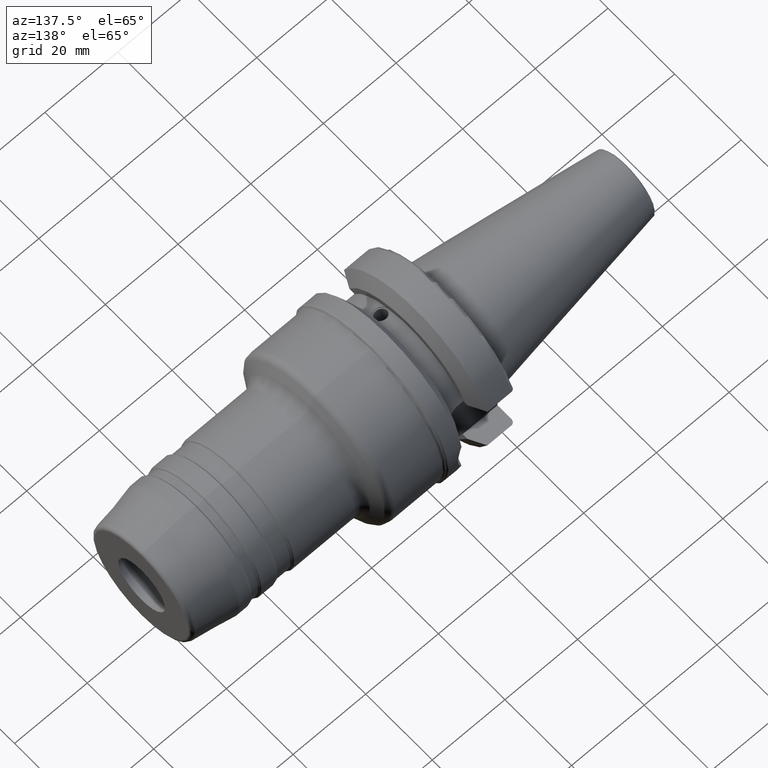
[diagram: clean part render]
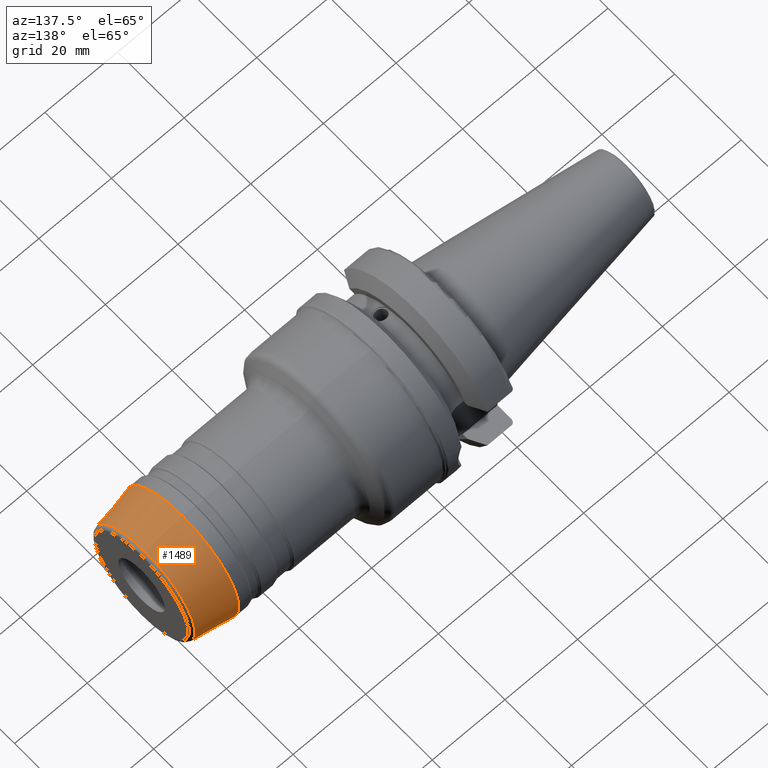
[diagram: same view with one face highlighted and labeled with its STEP entity id]
A machine part, auxiliary view. The second image highlights one B-rep face of the part: STEP entity #1489.
In plain terms, the highlighted conical surface has half-angle 10 deg.
Its self-contained STEP definition (entity closure, byte-faithful):
#105=CONICAL_SURFACE('',#1638,16.,0.174532925199432);
#127=LINE('',#2406,#200);
#200=VECTOR('',#1924,16.);
#321=FACE_OUTER_BOUND('',#414,.T.);
#414=EDGE_LOOP('',(#1062,#1063,#1064,#1065));
#530=CIRCLE('',#1637,15.1457081218349);
#531=CIRCLE('',#1639,16.9848077530122);
#626=VERTEX_POINT('',#2401);
#627=VERTEX_POINT('',#2405);
#790=EDGE_CURVE('',#626,#626,#530,.T.);
#791=EDGE_CURVE('',#626,#627,#127,.T.);
#792=EDGE_CURVE('',#627,#627,#531,.T.);
#1062=ORIENTED_EDGE('',*,*,#790,.F.);
#1063=ORIENTED_EDGE('',*,*,#791,.T.);
#1064=ORIENTED_EDGE('',*,*,#792,.F.);
#1065=ORIENTED_EDGE('',*,*,#791,.F.);
#1489=ADVANCED_FACE('',(#321),#105,.T.);
#1637=AXIS2_PLACEMENT_3D('',#2403,#1920,#1921);
#1638=AXIS2_PLACEMENT_3D('',#2404,#1922,#1923);
#1639=AXIS2_PLACEMENT_3D('',#2407,#1925,#1926);
#1920=DIRECTION('center_axis',(1.,0.,0.));
#1921=DIRECTION('ref_axis',(0.,0.,1.));
#1922=DIRECTION('center_axis',(-1.,0.,0.));
#1923=DIRECTION('ref_axis',(0.,0.,-1.));
#1924=DIRECTION('',(-0.984807753012208,-2.12657684957576E-17,0.17364817766693));
#1925=DIRECTION('center_axis',(-1.,0.,0.));
#1926=DIRECTION('ref_axis',(0.,0.,1.));
#2401=CARTESIAN_POINT('',(84.1736481776669,-1.85481429722252E-15,15.1457081218349));
#2403=CARTESIAN_POINT('Origin',(84.1736481776669,-1.85481429722252E-15,
0.));
#2404=CARTESIAN_POINT('Origin',(79.3287181803823,0.,0.));
#2405=CARTESIAN_POINT('',(73.7435958749055,-2.08003904488596E-15,16.9848077530122));
#2406=CARTESIAN_POINT('',(79.3287181803823,-1.95943487863577E-15,16.));
#2407=CARTESIAN_POINT('Origin',(73.7435958749055,-2.08003904488596E-15,
0.));